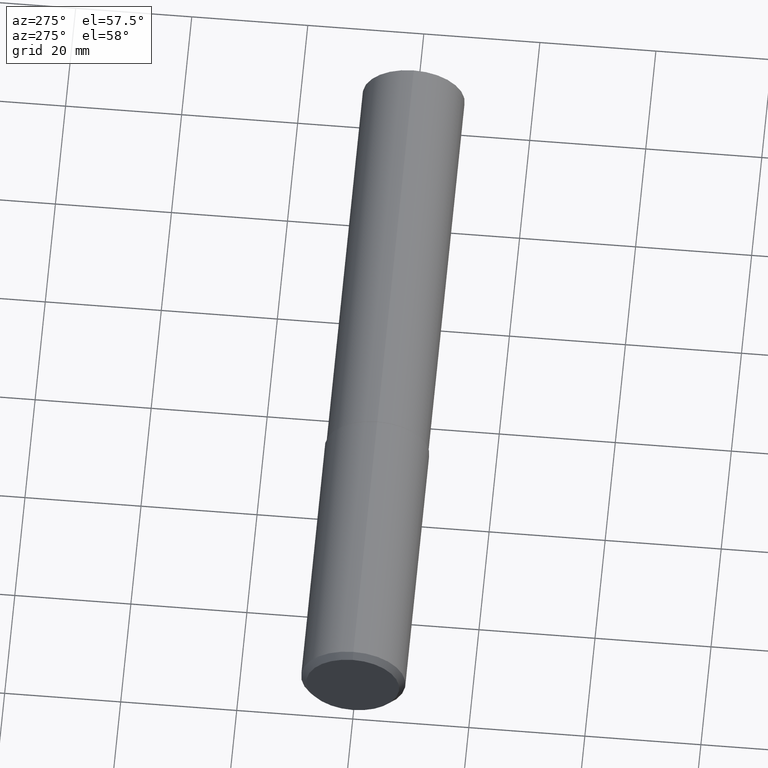
[diagram: clean part render]
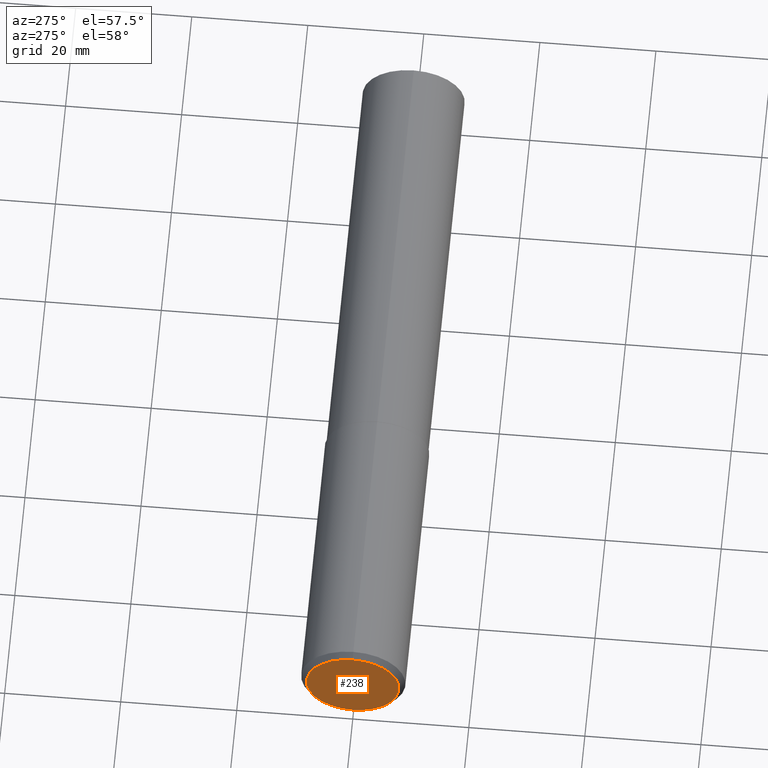
[diagram: same view with one face highlighted and labeled with its STEP entity id]
A machine part, auxiliary view. The second image highlights one B-rep face of the part: STEP entity #238.
In plain terms, the highlighted planar face has unit normal (-1, 0, 0).
Its self-contained STEP definition (entity closure, byte-faithful):
#4 = CARTESIAN_POINT ( 'NONE',  ( -8.537024980200822558E-18, 4.098227477461613409E-17, 0.3149606299212597271 ) ) ;
#16 = VERTEX_POINT ( 'NONE', #4 ) ;
#21 = EDGE_CURVE ( 'NONE', #167, #16, #102, .T. ) ;
#30 = DIRECTION ( 'NONE',  ( 1.000000000000000000, -0.000000000000000000, -0.000000000000000000 ) ) ;
#31 = CIRCLE ( 'NONE', #272, 0.3149606299212597271 ) ;
#41 = CARTESIAN_POINT ( 'NONE',  ( -8.537024980200822558E-18, 0.000000000000000000, -0.3149606299212597271 ) ) ;
#102 = CIRCLE ( 'NONE', #169, 0.3149606299212597271 ) ;
#120 = DIRECTION ( 'NONE',  ( 1.000000000000000000, -0.000000000000000000, -0.000000000000000000 ) ) ;
#140 = ORIENTED_EDGE ( 'NONE', *, *, #362, .F. ) ;
#143 = DIRECTION ( 'NONE',  ( 0.000000000000000000, 0.000000000000000000, -1.000000000000000000 ) ) ;
#159 = DIRECTION ( 'NONE',  ( -1.000000000000000000, 0.000000000000000000, 0.000000000000000000 ) ) ;
#167 = VERTEX_POINT ( 'NONE', #41 ) ;
#169 = AXIS2_PLACEMENT_3D ( 'NONE', #297, #120, #209 ) ;
#199 = FACE_OUTER_BOUND ( 'NONE', #217, .T. ) ;
#209 = DIRECTION ( 'NONE',  ( 0.000000000000000000, 0.000000000000000000, -1.000000000000000000 ) ) ;
#217 = EDGE_LOOP ( 'NONE', ( #221, #140 ) ) ;
#221 = ORIENTED_EDGE ( 'NONE', *, *, #21, .F. ) ;
#238 = ADVANCED_FACE ( 'NONE', ( #199 ), #329, .T. ) ;
#266 = CARTESIAN_POINT ( 'NONE',  ( -8.537024980200822558E-18, 0.000000000000000000, 0.000000000000000000 ) ) ;
#270 = DIRECTION ( 'NONE',  ( 0.000000000000000000, 0.000000000000000000, 1.000000000000000000 ) ) ;
#272 = AXIS2_PLACEMENT_3D ( 'NONE', #266, #30, #143 ) ;
#297 = CARTESIAN_POINT ( 'NONE',  ( -8.537024980200822558E-18, 0.000000000000000000, 0.000000000000000000 ) ) ;
#329 = PLANE ( 'NONE',  #333 ) ;
#333 = AXIS2_PLACEMENT_3D ( 'NONE', #371, #159, #270 ) ;
#362 = EDGE_CURVE ( 'NONE', #16, #167, #31, .T. ) ;
#371 = CARTESIAN_POINT ( 'NONE',  ( -4.821444091131301509E-18, 0.3149606299212597271, 0.000000000000000000 ) ) ;